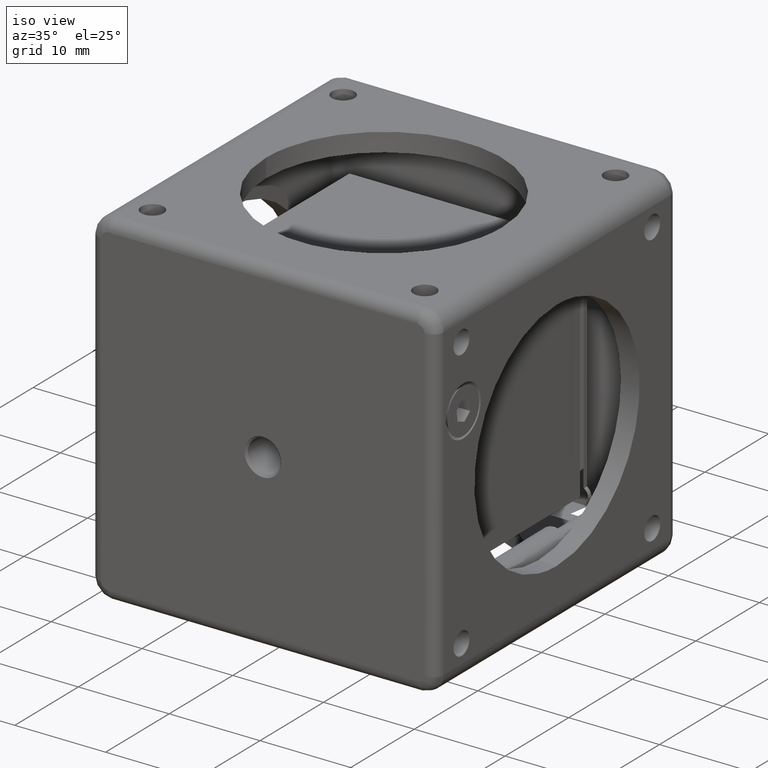
[diagram: clean part render]
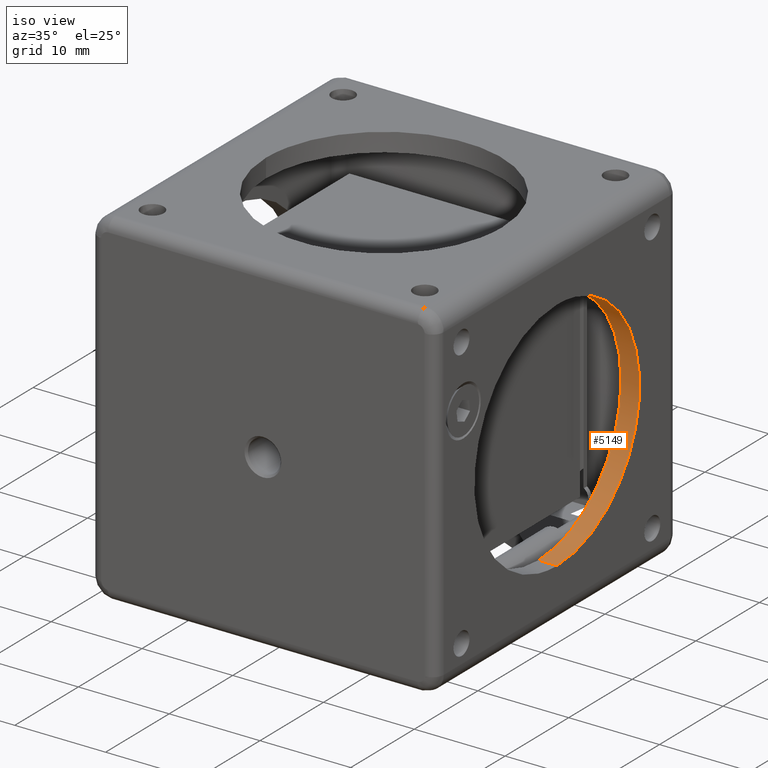
[diagram: same view with one face highlighted and labeled with its STEP entity id]
A machine part, iso view. The second image highlights one B-rep face of the part: STEP entity #5149.
In plain terms, the highlighted face is a freeform B-spline surface patch.
Its self-contained STEP definition (entity closure, byte-faithful):
#2 = CARTESIAN_POINT ( 'NONE',  ( -312.8507940824680418, 19.34925001379204090, 26.41623744531546336 ) ) ;
#98 = CARTESIAN_POINT ( 'NONE',  ( -312.8507940824679281, 25.26948208025303799, 43.86353048808566513 ) ) ;
#150 = CARTESIAN_POINT ( 'NONE',  ( -310.5957940824681032, 39.58571952542175865, 51.09999999999995168 ) ) ;
#238 = EDGE_CURVE ( 'NONE', #7333, #3155, #4690, .T. ) ;
#270 = ORIENTED_EDGE ( 'NONE', *, *, #2048, .F. ) ;
#765 = CARTESIAN_POINT ( 'NONE',  ( -312.8507940824679849, 26.50246546361191946, 39.79895150555969252 ) ) ;
#853 = VERTEX_POINT ( 'NONE', #6685 ) ;
#905 = CARTESIAN_POINT ( 'NONE',  ( -312.8507940824679849, 13.58571952542149930, 51.10000000000000142 ) ) ;
#953 = CARTESIAN_POINT ( 'NONE',  ( -312.8507940824679281, 26.16939087771526573, 41.47339686685914018 ) ) ;
#1518 = CARTESIAN_POINT ( 'NONE',  ( -312.8507940824678712, 26.50245902342131998, 36.40104977532718777 ) ) ;
#1610 = CARTESIAN_POINT ( 'NONE',  ( -312.8507940824679849, 16.95910116868283168, 50.68368107540304379 ) ) ;
#1658 = B_SPLINE_CURVE_WITH_KNOTS ( 'NONE', 1,
 ( #4302, #8535 ),
 .UNSPECIFIED., .F., .F.,
 ( 2, 2 ),
 ( 0.000000000000000000, 1.000000000000000000 ),
 .UNSPECIFIED. ) ;
#1689 = ORIENTED_EDGE ( 'NONE', *, *, #7323, .T. ) ;
#1844 = B_SPLINE_CURVE_WITH_KNOTS ( 'NONE', 3,
 ( #2318, #5176, #5867, #8567, #2183, #2, #5045, #4473, #2228, #7997, #7915, #4518, #4383, #2269, #6609, #1518, #3689, #7349, #765, #953, #6522, #98, #2985, #5133, #5822, #4429, #8693, #8652, #7957, #7259, #1610, #5915, #7303, #905 ),
 .UNSPECIFIED., .F., .F.,
 ( 4, 2, 2, 2, 2, 2, 2, 2, 2, 2, 2, 2, 2, 2, 2, 2, 4 ),
 ( 0.000000000000000000, 0.06249999999999973632, 0.1249999999999995837, 0.1874999999999994171, 0.2499999999999992784, 0.3124999999999991118, 0.3749999999999991673, 0.4374999999999992784, 0.4999999999999993339, 0.5624999999999994449, 0.6249999999999994449, 0.6874999999999995559, 0.7499999999999995559, 0.8124999999999996669, 0.8749999999999997780, 0.9374999999999997780, 1.000000000000000000 ),
 .UNSPECIFIED. ) ;
#2048 = EDGE_CURVE ( 'NONE', #853, #2527, #1844, .T. ) ;
#2061 = ORIENTED_EDGE ( 'NONE', *, *, #7968, .T. ) ;
#2103 = CARTESIAN_POINT ( 'NONE',  ( -312.8507940824679849, 13.58571952542149930, 51.10000000000000142 ) ) ;
#2183 = CARTESIAN_POINT ( 'NONE',  ( -312.8507940824679849, 17.77195827854339072, 25.76289470939067883 ) ) ;
#2228 = CARTESIAN_POINT ( 'NONE',  ( -312.8507940824679849, 22.17450562559801952, 28.30400514615909557 ) ) ;
#2269 = CARTESIAN_POINT ( 'NONE',  ( -312.8507940824679281, 25.92281874939364528, 33.91376375938814647 ) ) ;
#2318 = CARTESIAN_POINT ( 'NONE',  ( -312.8507940824679849, 13.58571952542149930, 25.10000000000000142 ) ) ;
#2426 = CARTESIAN_POINT ( 'NONE',  ( -312.8507940824679849, 13.58571952542149930, 51.10000000000000142 ) ) ;
#2527 = VERTEX_POINT ( 'NONE', #2426 ) ;
#2985 = CARTESIAN_POINT ( 'NONE',  ( -312.8507940824679849, 24.86907613075219103, 44.61265119332713880 ) ) ;
#3034 = CARTESIAN_POINT ( 'NONE',  ( -310.5957940824681032, 39.58571952542175865, 25.09999999999961773 ) ) ;
#3155 = VERTEX_POINT ( 'NONE', #7462 ) ;
#3689 = CARTESIAN_POINT ( 'NONE',  ( -312.8507940824679281, 26.58572280859705828, 37.24637450414657991 ) ) ;
#3701 = CARTESIAN_POINT ( 'NONE',  ( -310.8007940824684852, 13.58571952542149930, 25.09999999999859810 ) ) ;
#3736 = CARTESIAN_POINT ( 'NONE',  ( -313.0557940824681395, 39.58571952542175865, 25.09999999999970655 ) ) ;
#3836 = CARTESIAN_POINT ( 'NONE',  ( -313.0557940824681395, 39.58571952542175865, 51.09999999999995168 ) ) ;
#3884 =( BOUNDED_SURFACE ( )  B_SPLINE_SURFACE ( 1, 3, ( 
 ( #8746, #3736, #3836, #5787 ),
 ( #5874, #3034, #150, #8700 ) ),
 .UNSPECIFIED., .F., .F., .F. ) 
 B_SPLINE_SURFACE_WITH_KNOTS ( ( 2, 2 ),
 ( 4, 4 ),
 ( 0.000000000000000000, 1.000000000000000000 ),
 ( 0.000000000000000000, 1.000000000000000000 ),
 .UNSPECIFIED. ) 
 GEOMETRIC_REPRESENTATION_ITEM ( )  RATIONAL_B_SPLINE_SURFACE ( (
 ( 1.000000000000000000, 0.3333333333333329818, 0.3333333333333329818, 1.000000000000000000),
 ( 1.000000000000000000, 0.3333333333333329818, 0.3333333333333329818, 1.000000000000000000) ) ) 
 REPRESENTATION_ITEM ( '' )  SURFACE ( )  );
#4302 = CARTESIAN_POINT ( 'NONE',  ( -312.8507940824679849, 13.58571952542149930, 25.10000000000000142 ) ) ;
#4359 = CARTESIAN_POINT ( 'NONE',  ( -310.8007940824684852, 13.58571952542149930, 25.09999999999859810 ) ) ;
#4383 = CARTESIAN_POINT ( 'NONE',  ( -312.8507940824679849, 25.26948814674301502, 32.33646699911904676 ) ) ;
#4429 = CARTESIAN_POINT ( 'NONE',  ( -312.8507940824680418, 22.17450098284054860, 47.89599021031338566 ) ) ;
#4473 = CARTESIAN_POINT ( 'NONE',  ( -312.8507940824679281, 21.51789439088195621, 27.76514668569311439 ) ) ;
#4518 = CARTESIAN_POINT ( 'NONE',  ( -312.8507940824679281, 24.86907067107365421, 31.58735245479898168 ) ) ;
#4690 =( BOUNDED_CURVE ( )  B_SPLINE_CURVE ( 3, ( #4359, #7237, #5756, #8588 ),
 .UNSPECIFIED., .F., .F. ) 
 B_SPLINE_CURVE_WITH_KNOTS ( ( 4, 4 ),
 ( 0.000000000000000000, 1.000000000000000000 ),
 .UNSPECIFIED. ) 
 CURVE ( )  GEOMETRIC_REPRESENTATION_ITEM ( )  RATIONAL_B_SPLINE_CURVE ( ( 1.000000000000000000, 0.3333333333333329818, 0.3333333333333329818, 1.000000000000000000 ) ) 
 REPRESENTATION_ITEM ( '' )  );
#5045 = CARTESIAN_POINT ( 'NONE',  ( -312.8507940824680418, 20.09837071847082512, 26.81664339444027689 ) ) ;
#5133 = CARTESIAN_POINT ( 'NONE',  ( -312.8507940824679849, 23.92057283995714911, 46.03217486518197177 ) ) ;
#5149 = ADVANCED_FACE ( 'NONE', ( #8658 ), #3884, .T. ) ;
#5176 = CARTESIAN_POINT ( 'NONE',  ( -312.8507940824680418, 14.43932851594268207, 25.09999999999979181 ) ) ;
#5205 = EDGE_LOOP ( 'NONE', ( #1689, #7811, #2061, #270 ) ) ;
#5756 = CARTESIAN_POINT ( 'NONE',  ( -310.8007940824691104, 39.58571952542175865, 51.09999999999995168 ) ) ;
#5787 = CARTESIAN_POINT ( 'NONE',  ( -313.0557940824679690, 13.58571952542149930, 51.10000000000000142 ) ) ;
#5822 = CARTESIAN_POINT ( 'NONE',  ( -312.8507940824679281, 23.38171437885285897, 46.68878610053629785 ) ) ;
#5867 = CARTESIAN_POINT ( 'NONE',  ( -312.8507940824679849, 15.28467103086977907, 25.18325406179244652 ) ) ;
#5874 = CARTESIAN_POINT ( 'NONE',  ( -310.5957940824679326, 13.58571952542149930, 25.09999999999959996 ) ) ;
#5915 = CARTESIAN_POINT ( 'NONE',  ( -312.8507940824679281, 15.28468625457955632, 51.01673621508037115 ) ) ;
#6310 = B_SPLINE_CURVE_WITH_KNOTS ( 'NONE', 1,
 ( #7186, #2103 ),
 .UNSPECIFIED., .F., .F.,
 ( 2, 2 ),
 ( 0.000000000000000000, 1.000000000000000000 ),
 .UNSPECIFIED. ) ;
#6522 = CARTESIAN_POINT ( 'NONE',  ( -312.8507940824679849, 25.92282481588362231, 42.28623875340613836 ) ) ;
#6609 = CARTESIAN_POINT ( 'NONE',  ( -312.8507940824680418, 26.16939731790587587, 34.72660185225297624 ) ) ;
#6685 = CARTESIAN_POINT ( 'NONE',  ( -312.8507940824679849, 13.58571952542149930, 25.10000000000000142 ) ) ;
#7186 = CARTESIAN_POINT ( 'NONE',  ( -310.8007940824684852, 13.58571952542149930, 51.09999999999899956 ) ) ;
#7237 = CARTESIAN_POINT ( 'NONE',  ( -310.8007940824691104, 39.58571952542175865, 25.09999999999962128 ) ) ;
#7259 = CARTESIAN_POINT ( 'NONE',  ( -312.8507940824679849, 17.77195576547787681, 50.43709922412094215 ) ) ;
#7303 = CARTESIAN_POINT ( 'NONE',  ( -312.8507940824679281, 14.43929485917632682, 51.09999999999969589 ) ) ;
#7323 = EDGE_CURVE ( 'NONE', #853, #7333, #1658, .T. ) ;
#7333 = VERTEX_POINT ( 'NONE', #3701 ) ;
#7349 = CARTESIAN_POINT ( 'NONE',  ( -312.8507940824679281, 26.58571624224614283, 38.95362549585291134 ) ) ;
#7462 = CARTESIAN_POINT ( 'NONE',  ( -310.8007940824684852, 13.58571952542149930, 51.09999999999899956 ) ) ;
#7811 = ORIENTED_EDGE ( 'NONE', *, *, #238, .T. ) ;
#7915 = CARTESIAN_POINT ( 'NONE',  ( -312.8507940824679849, 23.92057829963568594, 30.16782148669091868 ) ) ;
#7957 = CARTESIAN_POINT ( 'NONE',  ( -312.8507940824679849, 19.34925252685755126, 49.78376862117193724 ) ) ;
#7968 = EDGE_CURVE ( 'NONE', #3155, #2527, #6310, .T. ) ;
#7997 = CARTESIAN_POINT ( 'NONE',  ( -312.8507940824679849, 23.38170973609539161, 29.51121854299025316 ) ) ;
#8535 = CARTESIAN_POINT ( 'NONE',  ( -310.8007940824684852, 13.58571952542149930, 25.09999999999859810 ) ) ;
#8567 = CARTESIAN_POINT ( 'NONE',  ( -312.8507940824678712, 16.95911639239260182, 25.51632864772312459 ) ) ;
#8588 = CARTESIAN_POINT ( 'NONE',  ( -310.8007940824684852, 13.58571952542149930, 51.09999999999899956 ) ) ;
#8652 = CARTESIAN_POINT ( 'NONE',  ( -312.8507940824679849, 20.09836707064512495, 49.38335114572313955 ) ) ;
#8658 = FACE_OUTER_BOUND ( 'NONE', #5205, .T. ) ;
#8693 = CARTESIAN_POINT ( 'NONE',  ( -312.8507940824679849, 21.51789803870765638, 48.43485877414246943 ) ) ;
#8700 = CARTESIAN_POINT ( 'NONE',  ( -310.5957940824679326, 13.58571952542149930, 51.10000000000000142 ) ) ;
#8746 = CARTESIAN_POINT ( 'NONE',  ( -313.0557940824679690, 13.58571952542149930, 25.10000000000000142 ) ) ;